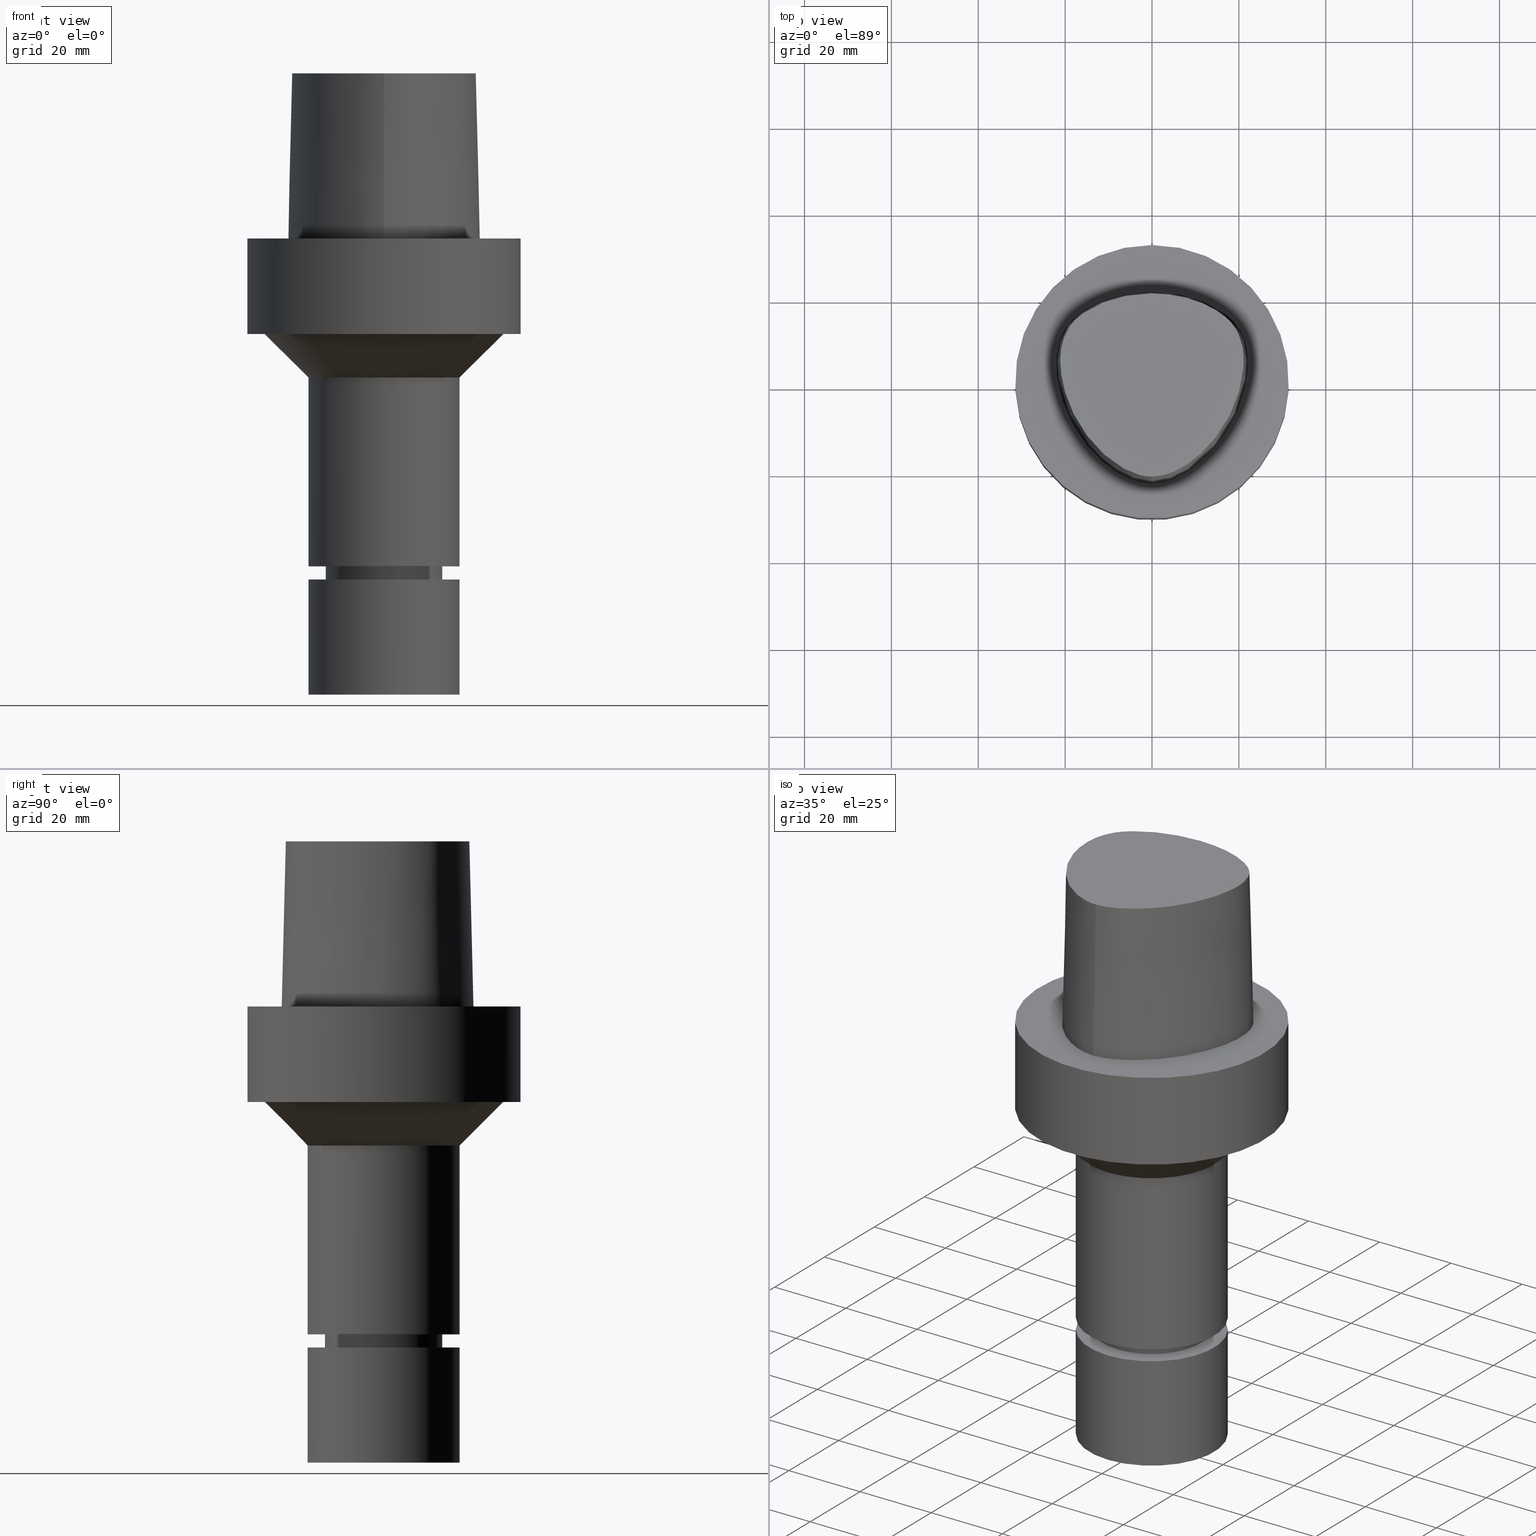
[diagram: canonical four-view strip — front | top / right | iso, engineering-drawing reading convention]
A machine part, canonical four-view strip (front | top / right | iso — engineering-drawing reading convention). The complete STEP part file that produces these views, byte-faithful:
ISO-10303-21;
HEADER;
FILE_DESCRIPTION((''),'1');
FILE_NAME('V:/90_\X2\53D65F9730C730FC30BF\X0\/00_\X2\6DE18DEF30C730FC30BF\X0\/ALL/CAPTO-BKUS\X2\52A05DE556F3\X0\_201801/C6-MEGAER/C6-MEGAER20-105NL.stp','2018-02-01T08:05:04',(''),(''),'Spatial Interop R21 SP3','Kubotek KeyCreator 2011 V10.0.2 (22737)',' ');
FILE_SCHEMA(('automotive_design'));
ENDSEC;
DATA;
#1=MECHANICAL_DESIGN_GEOMETRIC_PRESENTATION_REPRESENTATION(' ',(#14,#15,#16,#17,#18,#19,#20,#21,#22,#23,#24,#25,#26,#27,#28,#29,#30,#31,#32,#33,#34,#35,#36,#37,#38,#39,#40,#41,#42,#43,#44,#45,#46,#47,#48,#49,#50,#51,#52,#53),#10);
#2=PRODUCT_DEFINITION_CONTEXT('',#54,'design');
#3=APPLICATION_PROTOCOL_DEFINITION('INTERNATIONAL STANDARD','automotive_design',1994,#54);
#4=PRODUCT_CATEGORY_RELATIONSHIP('NONE','NONE',#55,#56);
#5=SHAPE_DEFINITION_REPRESENTATION(#57,#58);
#6=PRODUCT_DEFINITION_CONTEXT('',#59,'design');
#7=APPLICATION_PROTOCOL_DEFINITION('INTERNATIONAL STANDARD','automotive_design',1994,#59);
#8=PRODUCT_CATEGORY_RELATIONSHIP('NONE','NONE',#60,#61);
#9=SHAPE_DEFINITION_REPRESENTATION(#62,#63);
#10= (GEOMETRIC_REPRESENTATION_CONTEXT(3)GLOBAL_UNCERTAINTY_ASSIGNED_CONTEXT((#66))GLOBAL_UNIT_ASSIGNED_CONTEXT((#68,#69,#70))REPRESENTATION_CONTEXT('NONE','WORKSPACE'));
#14=STYLED_ITEM('',(#72),#73);
#15=STYLED_ITEM('',(#74,#75),#76);
#16=STYLED_ITEM('',(#77,#78),#79);
#17=STYLED_ITEM('',(#80,#81),#82);
#18=STYLED_ITEM('',(#83,#84),#85);
#19=STYLED_ITEM('',(#86),#87);
#20=STYLED_ITEM('',(#88),#89);
#21=STYLED_ITEM('',(#90,#91),#92);
#22=STYLED_ITEM('',(#93),#94);
#23=STYLED_ITEM('',(#95,#96),#97);
#24=STYLED_ITEM('',(#98,#99),#100);
#25=STYLED_ITEM('',(#101,#102),#103);
#26=STYLED_ITEM('',(#104,#105),#106);
#27=STYLED_ITEM('',(#107),#108);
#28=STYLED_ITEM('',(#109),#110);
#29=STYLED_ITEM('',(#111,#112),#113);
#30=STYLED_ITEM('',(#114),#115);
#31=STYLED_ITEM('',(#116),#117);
#32=STYLED_ITEM('',(#118),#119);
#33=STYLED_ITEM('',(#120),#121);
#34=STYLED_ITEM('',(#122),#123);
#35=STYLED_ITEM('',(#124,#125),#126);
#36=STYLED_ITEM('',(#127,#128),#129);
#37=STYLED_ITEM('',(#130),#131);
#38=STYLED_ITEM('',(#132),#133);
#39=STYLED_ITEM('',(#134,#135),#136);
#40=STYLED_ITEM('',(#137),#138);
#41=STYLED_ITEM('',(#139),#140);
#42=STYLED_ITEM('',(#141),#142);
#43=STYLED_ITEM('',(#143,#144),#145);
#44=STYLED_ITEM('',(#146,#147),#148);
#45=STYLED_ITEM('',(#149),#150);
#46=STYLED_ITEM('',(#151,#152),#153);
#47=STYLED_ITEM('',(#154),#155);
#48=STYLED_ITEM('',(#156),#157);
#49=STYLED_ITEM('',(#158,#159),#160);
#50=STYLED_ITEM('',(#161,#162),#163);
#51=STYLED_ITEM('',(#164),#165);
#52=STYLED_ITEM('',(#166,#167),#168);
#53=STYLED_ITEM('',(#169,#170),#171);
#54=APPLICATION_CONTEXT(' ');
#55=PRODUCT_CATEGORY('part','NONE');
#56=PRODUCT_RELATED_PRODUCT_CATEGORY('detail',' ',(#172));
#57=PRODUCT_DEFINITION_SHAPE('NONE','NONE',#173);
#58=ADVANCED_BREP_SHAPE_REPRESENTATION('Unnamed[1]',(#103,#174),#10);
#59=APPLICATION_CONTEXT(' ');
#60=PRODUCT_CATEGORY('part','NONE');
#61=PRODUCT_RELATED_PRODUCT_CATEGORY('detail',' ',(#175));
#62=PRODUCT_DEFINITION_SHAPE('NONE','NONE',#176);
#63=ADVANCED_BREP_SHAPE_REPRESENTATION('Unnamed[1]',(#153,#177),#10);
#66=UNCERTAINTY_MEASURE_WITH_UNIT(LENGTH_MEASURE(1.0E-006),#68,'','');
#68= (CONVERSION_BASED_UNIT('MILLIMETRE',#180)LENGTH_UNIT()NAMED_UNIT(#183));
#69= (NAMED_UNIT(#185)PLANE_ANGLE_UNIT()SI_UNIT($,.RADIAN.));
#70= (NAMED_UNIT(#185)SOLID_ANGLE_UNIT()SI_UNIT($,.STERADIAN.));
#72=PRESENTATION_STYLE_ASSIGNMENT((#191));
#73=EDGE_CURVE('Unnamed[1]',#192,#193,#194,.T.);
#74=PRESENTATION_STYLE_ASSIGNMENT((#195));
#75=PRESENTATION_STYLE_ASSIGNMENT((#196));
#76=ADVANCED_FACE('Unnamed[1]',(#197),#198,.T.);
#77=PRESENTATION_STYLE_ASSIGNMENT((#199));
#78=PRESENTATION_STYLE_ASSIGNMENT((#200));
#79=ADVANCED_FACE('Unnamed[1]',(#201),#202,.T.);
#80=PRESENTATION_STYLE_ASSIGNMENT((#203));
#81=PRESENTATION_STYLE_ASSIGNMENT((#204));
#82=ADVANCED_FACE('Unnamed[1]',(#205,#206),#207,.T.);
#83=PRESENTATION_STYLE_ASSIGNMENT((#208));
#84=PRESENTATION_STYLE_ASSIGNMENT((#209));
#85=ADVANCED_FACE('Unnamed[1]',(#210,#211),#212,.T.);
#86=PRESENTATION_STYLE_ASSIGNMENT((#213));
#87=EDGE_CURVE('Unnamed[1]',#214,#214,#215,.T.);
#88=PRESENTATION_STYLE_ASSIGNMENT((#216));
#89=EDGE_CURVE('Unnamed[1]',#217,#217,#218,.T.);
#90=PRESENTATION_STYLE_ASSIGNMENT((#219));
#91=PRESENTATION_STYLE_ASSIGNMENT((#220));
#92=ADVANCED_FACE('Unnamed[1]',(#221),#222,.T.);
#93=PRESENTATION_STYLE_ASSIGNMENT((#223));
#94=EDGE_CURVE('Unnamed[1]',#224,#224,#225,.T.);
#95=PRESENTATION_STYLE_ASSIGNMENT((#226));
#96=PRESENTATION_STYLE_ASSIGNMENT((#227));
#97=ADVANCED_FACE('Unnamed[1]',(#228),#229,.T.);
#98=PRESENTATION_STYLE_ASSIGNMENT((#230));
#99=PRESENTATION_STYLE_ASSIGNMENT((#231));
#100=ADVANCED_FACE('Unnamed[1]',(#232,#233),#234,.T.);
#101=PRESENTATION_STYLE_ASSIGNMENT((#235));
#102=PRESENTATION_STYLE_ASSIGNMENT((#236));
#103=MANIFOLD_SOLID_BREP('Unnamed[1]',#237);
#104=PRESENTATION_STYLE_ASSIGNMENT((#238));
#105=PRESENTATION_STYLE_ASSIGNMENT((#239));
#106=ADVANCED_FACE('Unnamed[1]',(#240),#241,.T.);
#107=PRESENTATION_STYLE_ASSIGNMENT((#242));
#108=EDGE_CURVE('Unnamed[1]',#243,#243,#244,.T.);
#109=PRESENTATION_STYLE_ASSIGNMENT((#245));
#110=EDGE_CURVE('Unnamed[1]',#246,#246,#247,.T.);
#111=PRESENTATION_STYLE_ASSIGNMENT((#248));
#112=PRESENTATION_STYLE_ASSIGNMENT((#249));
#113=ADVANCED_FACE('Unnamed[1]',(#250,#251),#252,.T.);
#114=PRESENTATION_STYLE_ASSIGNMENT((#253));
#115=EDGE_CURVE('Unnamed[1]',#192,#254,#255,.T.);
#116=PRESENTATION_STYLE_ASSIGNMENT((#256));
#117=EDGE_CURVE('Unnamed[1]',#257,#257,#258,.T.);
#118=PRESENTATION_STYLE_ASSIGNMENT((#259));
#119=EDGE_CURVE('Unnamed[1]',#260,#260,#261,.T.);
#120=PRESENTATION_STYLE_ASSIGNMENT((#262));
#121=EDGE_CURVE('Unnamed[1]',#193,#263,#264,.T.);
#122=PRESENTATION_STYLE_ASSIGNMENT((#265));
#123=EDGE_CURVE('Unnamed[1]',#266,#266,#267,.T.);
#124=PRESENTATION_STYLE_ASSIGNMENT((#268));
#125=PRESENTATION_STYLE_ASSIGNMENT((#269));
#126=ADVANCED_FACE('Unnamed[1]',(#270,#271),#272,.T.);
#127=PRESENTATION_STYLE_ASSIGNMENT((#273));
#128=PRESENTATION_STYLE_ASSIGNMENT((#274));
#129=ADVANCED_FACE('Unnamed[1]',(#275,#276),#277,.T.);
#130=PRESENTATION_STYLE_ASSIGNMENT((#278));
#131=EDGE_CURVE('Unnamed[1]',#254,#279,#280,.T.);
#132=PRESENTATION_STYLE_ASSIGNMENT((#281));
#133=EDGE_CURVE('Unnamed[1]',#282,#282,#283,.T.);
#134=PRESENTATION_STYLE_ASSIGNMENT((#284));
#135=PRESENTATION_STYLE_ASSIGNMENT((#285));
#136=ADVANCED_FACE('Unnamed[1]',(#286,#287),#288,.T.);
#137=PRESENTATION_STYLE_ASSIGNMENT((#289));
#138=EDGE_CURVE('Unnamed[1]',#254,#192,#290,.T.);
#139=PRESENTATION_STYLE_ASSIGNMENT((#291));
#140=EDGE_CURVE('Unnamed[1]',#254,#263,#292,.T.);
#141=PRESENTATION_STYLE_ASSIGNMENT((#293));
#142=EDGE_CURVE('Unnamed[1]',#294,#294,#295,.T.);
#143=PRESENTATION_STYLE_ASSIGNMENT((#296));
#144=PRESENTATION_STYLE_ASSIGNMENT((#297));
#145=ADVANCED_FACE('Unnamed[1]',(#298,#299),#300,.T.);
#146=PRESENTATION_STYLE_ASSIGNMENT((#301));
#147=PRESENTATION_STYLE_ASSIGNMENT((#302));
#148=ADVANCED_FACE('Unnamed[1]',(#303,#304),#305,.T.);
#149=PRESENTATION_STYLE_ASSIGNMENT((#306));
#150=EDGE_CURVE('Unnamed[1]',#263,#279,#307,.T.);
#151=PRESENTATION_STYLE_ASSIGNMENT((#308));
#152=PRESENTATION_STYLE_ASSIGNMENT((#309));
#153=MANIFOLD_SOLID_BREP('Unnamed[1]',#310);
#154=PRESENTATION_STYLE_ASSIGNMENT((#311));
#155=EDGE_CURVE('Unnamed[1]',#312,#312,#313,.T.);
#156=PRESENTATION_STYLE_ASSIGNMENT((#314));
#157=EDGE_CURVE('Unnamed[1]',#315,#315,#316,.T.);
#158=PRESENTATION_STYLE_ASSIGNMENT((#317));
#159=PRESENTATION_STYLE_ASSIGNMENT((#318));
#160=ADVANCED_FACE('Unnamed[1]',(#319,#320),#321,.T.);
#161=PRESENTATION_STYLE_ASSIGNMENT((#322));
#162=PRESENTATION_STYLE_ASSIGNMENT((#323));
#163=ADVANCED_FACE('Unnamed[1]',(#324),#325,.T.);
#164=PRESENTATION_STYLE_ASSIGNMENT((#326));
#165=EDGE_CURVE('Unnamed[1]',#279,#193,#327,.T.);
#166=PRESENTATION_STYLE_ASSIGNMENT((#328));
#167=PRESENTATION_STYLE_ASSIGNMENT((#329));
#168=ADVANCED_FACE('Unnamed[1]',(#330,#331),#332,.T.);
#169=PRESENTATION_STYLE_ASSIGNMENT((#333));
#170=PRESENTATION_STYLE_ASSIGNMENT((#334));
#171=ADVANCED_FACE('Unnamed[1]',(#335),#336,.T.);
#172=PRODUCT('Unnamed[1]','Unnamed[1]','PART-Unnamed[1]-DESC',(#337));
#173=PRODUCT_DEFINITION('NONE','NONE',#338,#2);
#174=AXIS2_PLACEMENT_3D('',#339,#340,#341);
#175=PRODUCT('Unnamed[1]','Unnamed[1]','PART-Unnamed[1]-DESC',(#342));
#176=PRODUCT_DEFINITION('NONE','NONE',#343,#6);
#177=AXIS2_PLACEMENT_3D('',#344,#345,#346);
#180=LENGTH_MEASURE_WITH_UNIT(LENGTH_MEASURE(1.0),#347);
#183=DIMENSIONAL_EXPONENTS(1.0,0.0,0.0,0.0,0.0,0.0,0.0);
#185=DIMENSIONAL_EXPONENTS(0.0,0.0,0.0,0.0,0.0,0.0,0.0);
#191=CURVE_STYLE('',#348,POSITIVE_LENGTH_MEASURE(1000.0),#349);
#192=VERTEX_POINT('',#350);
#193=VERTEX_POINT('',#351);
#194=LINE('',#352,#353);
#195=SURFACE_STYLE_USAGE(.BOTH.,#354);
#196=CURVE_STYLE('',#355,POSITIVE_LENGTH_MEASURE(1000.0),#356);
#197=FACE_OUTER_BOUND('',#357,.T.);
#198=CONICAL_SURFACE('',#358,1.0,0.0249931148600041);
#199=SURFACE_STYLE_USAGE(.BOTH.,#359);
#200=CURVE_STYLE('',#360,POSITIVE_LENGTH_MEASURE(1000.0),#361);
#201=FACE_OUTER_BOUND('',#362,.T.);
#202=PLANE('',#363);
#203=SURFACE_STYLE_USAGE(.BOTH.,#364);
#204=CURVE_STYLE('',#365,POSITIVE_LENGTH_MEASURE(1000.0),#366);
#205=FACE_BOUND('',#367,.T.);
#206=FACE_BOUND('',#368,.T.);
#207=CONICAL_SURFACE('',#369,11.9499999999988,0.523598775598648);
#208=SURFACE_STYLE_USAGE(.BOTH.,#370);
#209=CURVE_STYLE('',#371,POSITIVE_LENGTH_MEASURE(1000.0),#372);
#210=FACE_BOUND('',#373,.T.);
#211=FACE_BOUND('',#374,.T.);
#212=CYLINDRICAL_SURFACE('',#375,31.5);
#213=CURVE_STYLE('',#376,POSITIVE_LENGTH_MEASURE(1000.0),#377);
#214=VERTEX_POINT('',#378);
#215=CIRCLE('',#379,13.4999999999908);
#216=CURVE_STYLE('',#380,POSITIVE_LENGTH_MEASURE(1000.0),#381);
#217=VERTEX_POINT('',#382);
#218=CIRCLE('',#383,12.4999999999999);
#219=SURFACE_STYLE_USAGE(.BOTH.,#384);
#220=CURVE_STYLE('',#385,POSITIVE_LENGTH_MEASURE(1000.0),#386);
#221=FACE_OUTER_BOUND('',#387,.T.);
#222=B_SPLINE_SURFACE_WITH_KNOTS('',3,3,((#388,#389,#390,#391),(#392,#393,#394,#395),(#396,#397,#398,#399),(#400,#401,#402,#403),(#404,#405,#406,#407),(#408,#409,#410,#411),(#412,#413,#414,#415),(#416,#417,#418,#419),(#420,#421,#422,#423),(#424,#425,#426,#427),(#428,#429,#430,#431),(#432,#433,#434,#435),(#436,#437,#438,#439),(#440,#441,#442,#443),(#444,#445,#446,#447),(#448,#449,#450,#451),(#452,#453,#454,#455),(#456,#457,#458,#459)),.UNSPECIFIED.,.F.,.F.,.F.,(4,1,1,1,1,1,1,1,1,2,1,1,1,1,4),(4,4),(-6.6151339308743,-6.20168806019465,-5.78824218951501,-5.37479631883537,-4.96135044815572,-4.13445870679644,-3.30756696543715,-2.89412109475751,-2.48067522407786,-2.06722935339822,-1.65378348271857,-1.24033761203893,-0.826891741359287,-0.413445870679644,0.0),(-3.8,0.0),.UNSPECIFIED.);
#223=CURVE_STYLE('',#460,POSITIVE_LENGTH_MEASURE(1000.0),#461);
#224=VERTEX_POINT('',#462);
#225=CIRCLE('',#463,12.4999999999998);
#226=SURFACE_STYLE_USAGE(.BOTH.,#464);
#227=CURVE_STYLE('',#465,POSITIVE_LENGTH_MEASURE(1000.0),#466);
#228=FACE_OUTER_BOUND('',#467,.T.);
#229=PLANE('',#468);
#230=SURFACE_STYLE_USAGE(.BOTH.,#469);
#231=CURVE_STYLE('',#470,POSITIVE_LENGTH_MEASURE(1000.0),#471);
#232=FACE_BOUND('',#472,.T.);
#233=FACE_BOUND('',#473,.T.);
#234=CYLINDRICAL_SURFACE('',#474,17.5);
#235=SURFACE_STYLE_USAGE(.BOTH.,#475);
#236=CURVE_STYLE('',#476,POSITIVE_LENGTH_MEASURE(1000.0),#477);
#237=CLOSED_SHELL('',(#171,#92,#76,#106,#148,#85,#126,#168,#160,#113,#129,#136,#145,#82,#97));
#238=SURFACE_STYLE_USAGE(.BOTH.,#478);
#239=CURVE_STYLE('',#479,POSITIVE_LENGTH_MEASURE(1000.0),#480);
#240=FACE_OUTER_BOUND('',#481,.T.);
#241=PLANE('',#482);
#242=CURVE_STYLE('',#483,POSITIVE_LENGTH_MEASURE(1000.0),#484);
#243=VERTEX_POINT('',#485);
#244=CIRCLE('',#486,31.5);
#245=CURVE_STYLE('',#487,POSITIVE_LENGTH_MEASURE(1000.0),#488);
#246=VERTEX_POINT('',#489);
#247=CIRCLE('',#490,11.3999999999978);
#248=SURFACE_STYLE_USAGE(.BOTH.,#491);
#249=CURVE_STYLE('',#492,POSITIVE_LENGTH_MEASURE(1000.0),#493);
#250=FACE_BOUND('',#494,.T.);
#251=FACE_OUTER_BOUND('',#495,.T.);
#252=PLANE('',#496);
#253=CURVE_STYLE('',#497,POSITIVE_LENGTH_MEASURE(1000.0),#498);
#254=VERTEX_POINT('',#499);
#255=B_SPLINE_CURVE_WITH_KNOTS('',3,(#500,#501,#502,#503,#504,#505,#506,#507,#508,#509,#510,#511,#512,#513,#514,#515),.UNSPECIFIED.,.F.,.F.,(4,1,1,1,1,1,1,1,1,1,1,1,1,4),(6.61513393087476,6.99917207152274,7.48193246986995,7.96289324787093,8.45540287038584,9.10291653679981,9.67129810936083,10.1618749681153,10.6358867802489,11.1080734988593,11.6043706019633,12.09451993853,12.6985979284494,13.2302678617486),.UNSPECIFIED.);
#256=CURVE_STYLE('',#516,POSITIVE_LENGTH_MEASURE(1000.0),#517);
#257=VERTEX_POINT('',#518);
#258=CIRCLE('',#519,17.5);
#259=CURVE_STYLE('',#520,POSITIVE_LENGTH_MEASURE(1000.0),#521);
#260=VERTEX_POINT('',#522);
#261=CIRCLE('',#523,31.5);
#262=CURVE_STYLE('',#524,POSITIVE_LENGTH_MEASURE(1000.0),#525);
#263=VERTEX_POINT('',#526);
#264=B_SPLINE_CURVE_WITH_KNOTS('',3,(#527,#528,#529,#530,#531,#532,#533,#534,#535,#536,#537,#538,#539,#540,#541,#542,#543,#544),.UNSPECIFIED.,.F.,.F.,(4,1,1,1,1,1,1,1,1,2,1,1,1,1,4),(-6.6151339308743,-6.20168806019465,-5.78824218951501,-5.37479631883537,-4.96135044815572,-4.13445870679644,-3.30756696543715,-2.89412109475751,-2.48067522407786,-2.06722935339822,-1.65378348271857,-1.24033761203893,-0.826891741359287,-0.413445870679644,0.0),.UNSPECIFIED.);
#265=CURVE_STYLE('',#545,POSITIVE_LENGTH_MEASURE(1000.0),#546);
#266=VERTEX_POINT('',#547);
#267=CIRCLE('',#548,17.4999999999996);
#268=SURFACE_STYLE_USAGE(.BOTH.,#549);
#269=CURVE_STYLE('',#550,POSITIVE_LENGTH_MEASURE(1000.0),#551);
#270=FACE_BOUND('',#552,.T.);
#271=FACE_OUTER_BOUND('',#553,.T.);
#272=PLANE('',#554);
#273=SURFACE_STYLE_USAGE(.BOTH.,#555);
#274=CURVE_STYLE('',#556,POSITIVE_LENGTH_MEASURE(1000.0),#557);
#275=FACE_BOUND('',#558,.T.);
#276=FACE_BOUND('',#559,.T.);
#277=CYLINDRICAL_SURFACE('',#560,13.4999999999956);
#278=CURVE_STYLE('',#561,POSITIVE_LENGTH_MEASURE(1000.0),#562);
#279=VERTEX_POINT('',#563);
#280=LINE('',#564,#565);
#281=CURVE_STYLE('',#566,POSITIVE_LENGTH_MEASURE(1000.0),#567);
#282=VERTEX_POINT('',#568);
#283=CIRCLE('',#569,13.5000000000005);
#284=SURFACE_STYLE_USAGE(.BOTH.,#570);
#285=CURVE_STYLE('',#571,POSITIVE_LENGTH_MEASURE(1000.0),#572);
#286=FACE_BOUND('',#573,.T.);
#287=FACE_BOUND('',#574,.T.);
#288=CONICAL_SURFACE('',#575,13.0000000000002,1.04719755119482);
#289=CURVE_STYLE('',#576,POSITIVE_LENGTH_MEASURE(1000.0),#577);
#290=B_SPLINE_CURVE_WITH_KNOTS('',3,(#578,#579,#580,#581,#582,#583,#584,#585,#586,#587,#588,#589,#590,#591,#592,#593),.UNSPECIFIED.,.F.,.F.,(4,1,1,1,1,1,1,1,1,1,1,1,1,4),(0.0,0.447924670568964,0.9388024242536,1.50591409090711,2.07314340012323,2.72424957442464,3.2253501842849,3.80982102049476,4.34867996267067,4.85900173381144,5.37972031856977,6.03459825488646,6.61113557741484,6.61513393087395),.UNSPECIFIED.);
#291=CURVE_STYLE('',#594,POSITIVE_LENGTH_MEASURE(1000.0),#595);
#292=LINE('',#596,#597);
#293=CURVE_STYLE('',#598,POSITIVE_LENGTH_MEASURE(1000.0),#599);
#294=VERTEX_POINT('',#600);
#295=CIRCLE('',#601,17.5);
#296=SURFACE_STYLE_USAGE(.BOTH.,#602);
#297=CURVE_STYLE('',#603,POSITIVE_LENGTH_MEASURE(1000.0),#604);
#298=FACE_BOUND('',#605,.T.);
#299=FACE_BOUND('',#606,.T.);
#300=CYLINDRICAL_SURFACE('',#607,12.4999999999999);
#301=SURFACE_STYLE_USAGE(.BOTH.,#608);
#302=CURVE_STYLE('',#609,POSITIVE_LENGTH_MEASURE(1000.0),#610);
#303=FACE_BOUND('',#611,.T.);
#304=FACE_OUTER_BOUND('',#612,.T.);
#305=PLANE('',#613);
#306=CURVE_STYLE('',#614,POSITIVE_LENGTH_MEASURE(1000.0),#615);
#307=CIRCLE('',#616,0.949936168436318);
#308=SURFACE_STYLE_USAGE(.BOTH.,#617);
#309=CURVE_STYLE('',#618,POSITIVE_LENGTH_MEASURE(1000.0),#619);
#310=CLOSED_SHELL('',(#163,#79,#100));
#311=CURVE_STYLE('',#620,POSITIVE_LENGTH_MEASURE(1000.0),#621);
#312=VERTEX_POINT('',#622);
#313=CIRCLE('',#623,27.4999999999995);
#314=CURVE_STYLE('',#624,POSITIVE_LENGTH_MEASURE(1000.0),#625);
#315=VERTEX_POINT('',#626);
#316=CIRCLE('',#627,17.4999999999999);
#317=SURFACE_STYLE_USAGE(.BOTH.,#628);
#318=CURVE_STYLE('',#629,POSITIVE_LENGTH_MEASURE(1000.0),#630);
#319=FACE_BOUND('',#631,.T.);
#320=FACE_BOUND('',#632,.T.);
#321=CYLINDRICAL_SURFACE('',#633,17.4999999999998);
#322=SURFACE_STYLE_USAGE(.BOTH.,#634);
#323=CURVE_STYLE('',#635,POSITIVE_LENGTH_MEASURE(1000.0),#636);
#324=FACE_OUTER_BOUND('',#637,.T.);
#325=PLANE('',#638);
#326=CURVE_STYLE('',#639,POSITIVE_LENGTH_MEASURE(1000.0),#640);
#327=B_SPLINE_CURVE_WITH_KNOTS('',3,(#641,#642,#643,#644,#645,#646,#647,#648,#649,#650,#651,#652,#653,#654,#655,#656,#657),.UNSPECIFIED.,.F.,.F.,(4,1,1,1,1,1,1,1,1,1,1,1,1,1,4),(-13.2302678617486,-12.816821991069,-12.4033761203893,-11.9899302497097,-11.57648437903,-11.1630385083504,-10.9563155730106,-10.7495926376707,-10.3361467669911,-9.92270089631145,-9.09580915495216,-8.26891741359287,-7.44202567223358,-7.02857980155394,-6.6151339308743),.UNSPECIFIED.);
#328=SURFACE_STYLE_USAGE(.BOTH.,#658);
#329=CURVE_STYLE('',#659,POSITIVE_LENGTH_MEASURE(1000.0),#660);
#330=FACE_BOUND('',#661,.T.);
#331=FACE_BOUND('',#662,.T.);
#332=CONICAL_SURFACE('',#663,22.4999999999997,0.785398163397432);
#333=SURFACE_STYLE_USAGE(.BOTH.,#664);
#334=CURVE_STYLE('',#665,POSITIVE_LENGTH_MEASURE(1000.0),#666);
#335=FACE_OUTER_BOUND('',#667,.T.);
#336=B_SPLINE_SURFACE_WITH_KNOTS('',3,3,((#668,#669,#670,#671),(#672,#673,#674,#675),(#676,#677,#678,#679),(#680,#681,#682,#683),(#684,#685,#686,#687),(#688,#689,#690,#691),(#692,#693,#694,#695),(#696,#697,#698,#699),(#700,#701,#702,#703),(#704,#705,#706,#707),(#708,#709,#710,#711),(#712,#713,#714,#715),(#716,#717,#718,#719),(#720,#721,#722,#723),(#724,#725,#726,#727),(#728,#729,#730,#731),(#732,#733,#734,#735)),.UNSPECIFIED.,.F.,.F.,.F.,(4,1,1,1,1,1,1,1,1,1,1,1,1,1,4),(4,4),(-13.2302678617486,-12.816821991069,-12.4033761203893,-11.9899302497097,-11.57648437903,-11.1630385083504,-10.9563155730106,-10.7495926376707,-10.3361467669911,-9.92270089631145,-9.09580915495216,-8.26891741359287,-7.44202567223358,-7.02857980155394,-6.6151339308743),(-3.8,0.0),.UNSPECIFIED.);
#337=PRODUCT_CONTEXT('',#54,'mechanical');
#338=PRODUCT_DEFINITION_FORMATION_WITH_SPECIFIED_SOURCE(' ','NONE',#172,.NOT_KNOWN.);
#339=CARTESIAN_POINT('',(0.0,0.0,0.0));
#340=DIRECTION('',(0.0,0.0,1.0));
#341=DIRECTION('',(1.0,0.0,0.0));
#342=PRODUCT_CONTEXT('',#59,'mechanical');
#343=PRODUCT_DEFINITION_FORMATION_WITH_SPECIFIED_SOURCE(' ','NONE',#175,.NOT_KNOWN.);
#344=CARTESIAN_POINT('',(0.0,0.0,0.0));
#345=DIRECTION('',(0.0,0.0,1.0));
#346=DIRECTION('',(1.0,0.0,0.0));
#347= (NAMED_UNIT(#183)LENGTH_UNIT()SI_UNIT(.MILLI.,.METRE.));
#348=DRAUGHTING_PRE_DEFINED_CURVE_FONT('continuous');
#349=COLOUR_RGB('',0.0,1.0,0.0);
#350=CARTESIAN_POINT('',(0.038736923393866,-22.5191997536361,38.0));
#351=CARTESIAN_POINT('',(0.04359356758149,-23.4691235068931,7.78075697532443E-032));
#352=CARTESIAN_POINT('',(0.038736923393866,-22.5191997536361,38.0));
#353=VECTOR('',#737,38.0118715498723);
#354=SURFACE_SIDE_STYLE('',(#738));
#355=DRAUGHTING_PRE_DEFINED_CURVE_FONT('continuous');
#356=COLOUR_RGB('',0.0,1.0,0.0);
#357=EDGE_LOOP('',(#739,#740,#741));
#358=AXIS2_PLACEMENT_3D('',#742,#743,#744);
#359=SURFACE_SIDE_STYLE('',(#745));
#360=DRAUGHTING_PRE_DEFINED_CURVE_FONT('continuous');
#361=COLOUR_RGB('',0.0,1.0,0.0);
#362=EDGE_LOOP('',(#746));
#363=AXIS2_PLACEMENT_3D('',#747,#748,#749);
#364=SURFACE_SIDE_STYLE('',(#750));
#365=DRAUGHTING_PRE_DEFINED_CURVE_FONT('continuous');
#366=COLOUR_RGB('',0.0,1.0,0.0);
#367=EDGE_LOOP('',(#751));
#368=EDGE_LOOP('',(#752));
#369=AXIS2_PLACEMENT_3D('',#753,#754,#755);
#370=SURFACE_SIDE_STYLE('',(#756));
#371=DRAUGHTING_PRE_DEFINED_CURVE_FONT('continuous');
#372=COLOUR_RGB('',0.0,1.0,0.0);
#373=EDGE_LOOP('',(#757));
#374=EDGE_LOOP('',(#758));
#375=AXIS2_PLACEMENT_3D('',#759,#760,#761);
#376=DRAUGHTING_PRE_DEFINED_CURVE_FONT('continuous');
#377=COLOUR_RGB('',0.0,1.0,0.0);
#378=CARTESIAN_POINT('',(4.62304166678125E-015,13.4999999999908,-75.4999999999998));
#379=AXIS2_PLACEMENT_3D('',#762,#763,#764);
#380=DRAUGHTING_PRE_DEFINED_CURVE_FONT('continuous');
#381=COLOUR_RGB('',0.0,1.0,0.0);
#382=CARTESIAN_POINT('',(5.01490875023965E-015,12.4999999999999,-81.8996751345975));
#383=AXIS2_PLACEMENT_3D('',#765,#766,#767);
#384=SURFACE_SIDE_STYLE('',(#768));
#385=DRAUGHTING_PRE_DEFINED_CURVE_FONT('continuous');
#386=COLOUR_RGB('',0.0,1.0,0.0);
#387=EDGE_LOOP('',(#769,#770,#771,#772));
#388=CARTESIAN_POINT('',(0.038736923393866,-22.5191997536361,38.0));
#389=CARTESIAN_POINT('',(0.04035580478973,-22.8358410047159,25.3333333333066));
#390=CARTESIAN_POINT('',(0.041974686185626,-23.1524822558133,12.6666666666934));
#391=CARTESIAN_POINT('',(0.04359356758149,-23.4691235068931,7.78075697532443E-032));
#392=CARTESIAN_POINT('',(-1.33786123484754,-22.5261650259856,38.0));
#393=CARTESIAN_POINT('',(-1.38240731367927,-22.8430399310626,25.3333333333066));
#394=CARTESIAN_POINT('',(-1.42695339249092,-23.1599147815484,12.6666666666934));
#395=CARTESIAN_POINT('',(-1.4714994713963,-23.4767895315797,2.46519032881566E-032));
#396=CARTESIAN_POINT('',(-4.08909358431842,-21.9268839879558,38.0));
#397=CARTESIAN_POINT('',(-4.20580731135515,-22.2249725500078,25.3333333333066));
#398=CARTESIAN_POINT('',(-4.32252104640446,-22.5230611651922,12.6666666666934));
#399=CARTESIAN_POINT('',(-4.43923476371401,-22.821149804767,-4.93038065763132E-032));
#400=CARTESIAN_POINT('',(-7.8333083619947,-19.9973514861616,38.0));
#401=CARTESIAN_POINT('',(-8.00568301809614,-20.2649260859405,25.3333333333066));
#402=CARTESIAN_POINT('',(-8.1780576640789,-20.532500564315,12.6666666666934));
#403=CARTESIAN_POINT('',(-8.35043230079961,-20.8000751253325,-9.86076131526265E-032));
#404=CARTESIAN_POINT('',(-11.1035071147626,-17.450554957873,38.0));
#405=CARTESIAN_POINT('',(-11.3173048160562,-17.6855739222454,25.3333333333066));
#406=CARTESIAN_POINT('',(-11.5311025116181,-17.9205928617968,12.6666666666934));
#407=CARTESIAN_POINT('',(-11.744900222602,-18.1556117874078,-1.97215226305253E-031));
#408=CARTESIAN_POINT('',(-14.9379535189057,-13.461132049697,38.0));
#409=CARTESIAN_POINT('',(-15.191622410671,-13.6542981711372,25.3333333333066));
#410=CARTESIAN_POINT('',(-15.4452913389853,-13.8474645327131,12.6666666666934));
#411=CARTESIAN_POINT('',(-15.6989602501314,-14.0406306929147,-1.97215226305253E-031));
#412=CARTESIAN_POINT('',(-18.6681263017223,-7.59391757463204,38.0));
#413=CARTESIAN_POINT('',(-18.9571800800711,-7.73136168081928,25.3333333333066));
#414=CARTESIAN_POINT('',(-19.2462337287194,-7.86880572399774,12.6666666666934));
#415=CARTESIAN_POINT('',(-19.5352875070682,-8.00624990770787,1.97215226305253E-031));
#416=CARTESIAN_POINT('',(-20.7857899858339,-0.952862819790525,38.0));
#417=CARTESIAN_POINT('',(-21.0973808305434,-1.02218087467418,25.3333333333066));
#418=CARTESIAN_POINT('',(-21.408971677436,-1.09149899580772,12.6666666666934));
#419=CARTESIAN_POINT('',(-21.7205626190491,-1.16081708945282,0.0));
#420=CARTESIAN_POINT('',(-21.2911760556836,4.5469215763113,38.0));
#421=CARTESIAN_POINT('',(-21.610337904926,4.54783292082248,25.3333333333066));
#422=CARTESIAN_POINT('',(-21.9294998290918,4.54874426225691,12.6666666666934));
#423=CARTESIAN_POINT('',(-22.2486616783342,4.54965558738736,0.0));
#424=CARTESIAN_POINT('',(-20.7345309521958,8.74909381391006,38.0));
#425=CARTESIAN_POINT('',(-21.0445680426217,8.83349432450556,25.3333333333066));
#426=CARTESIAN_POINT('',(-21.3546050933631,8.91789488065068,12.6666666666934));
#427=CARTESIAN_POINT('',(-21.6646421256468,9.00229539124618,0.0));
#428=CARTESIAN_POINT('',(-19.5531512296439,11.3174844040833,38.0));
#429=CARTESIAN_POINT('',(-19.8336219699984,11.4710077674213,25.3333333333066));
#430=CARTESIAN_POINT('',(-20.1140927680763,11.6245311337623,12.6666666666934));
#431=CARTESIAN_POINT('',(-20.3945635471922,11.7780544971003,0.0));
#432=CARTESIAN_POINT('',(-17.9100913688793,13.524027510437,38.0));
#433=CARTESIAN_POINT('',(-18.1375785458768,13.7487051053655,25.3333333333066));
#434=CARTESIAN_POINT('',(-18.365065665211,13.9733826973296,12.6666666666934));
#435=CARTESIAN_POINT('',(-18.5925528034471,14.1980602922581,0.0));
#436=CARTESIAN_POINT('',(-15.7996349656398,15.3762170634413,38.0));
#437=CARTESIAN_POINT('',(-15.9739761051783,15.6434029846179,25.3333333333066));
#438=CARTESIAN_POINT('',(-16.1483172726872,15.9105889315134,12.6666666666934));
#439=CARTESIAN_POINT('',(-16.3226584122258,16.1777748720707,0.0));
#440=CARTESIAN_POINT('',(-12.1175640002064,17.3825162484012,38.0));
#441=CARTESIAN_POINT('',(-12.2475895903055,17.6724842099619,25.3333333333066));
#442=CARTESIAN_POINT('',(-12.3776152070492,17.9624521925696,12.6666666666934));
#443=CARTESIAN_POINT('',(-12.5076407874579,18.2524201541303,9.86076131526265E-032));
#444=CARTESIAN_POINT('',(-8.21761151654222,18.7588585989994,38.0));
#445=CARTESIAN_POINT('',(-8.30099497910627,19.0656105427881,25.3333333333066));
#446=CARTESIAN_POINT('',(-8.38437843913309,19.3723624535439,12.6666666666934));
#447=CARTESIAN_POINT('',(-8.46776192107786,19.679114377952,9.86076131526265E-032));
#448=CARTESIAN_POINT('',(-4.13466093881225,19.5396850837055,38.0));
#449=CARTESIAN_POINT('',(-4.16658562115465,19.8557172636973,25.3333333333066));
#450=CARTESIAN_POINT('',(-4.19851029939059,20.1717494367229,12.6666666666934));
#451=CARTESIAN_POINT('',(-4.23043497193604,20.487781597334,1.97215226305253E-031));
#452=CARTESIAN_POINT('',(-1.37917220403684,19.6638560588908,38.0));
#453=CARTESIAN_POINT('',(-1.39382511685176,19.98016223565,25.3333333333066));
#454=CARTESIAN_POINT('',(-1.40847802945569,20.296468399885,12.6666666666934));
#455=CARTESIAN_POINT('',(-1.42313094248379,20.6127745766442,1.10933564796705E-031));
#456=CARTESIAN_POINT('',(-0.001218547003662,19.7276821925089,38.0));
#457=CARTESIAN_POINT('',(-0.015869696232855,20.043988446791,25.3333333333066));
#458=CARTESIAN_POINT('',(-0.030520845462092,20.3602947010464,12.6666666666934));
#459=CARTESIAN_POINT('',(-0.045171994691285,20.6766009553285,1.6755590516169E-031));
#460=DRAUGHTING_PRE_DEFINED_CURVE_FONT('continuous');
#461=COLOUR_RGB('',0.0,1.0,0.0);
#462=CARTESIAN_POINT('',(5.71265548768156E-015,12.4999999999998,-93.2947441116725));
#463=AXIS2_PLACEMENT_3D('',#773,#774,#775);
#464=SURFACE_SIDE_STYLE('',(#776));
#465=DRAUGHTING_PRE_DEFINED_CURVE_FONT('continuous');
#466=COLOUR_RGB('',0.0,1.0,0.0);
#467=EDGE_LOOP('',(#777));
#468=AXIS2_PLACEMENT_3D('',#778,#779,#780);
#469=SURFACE_SIDE_STYLE('',(#781));
#470=DRAUGHTING_PRE_DEFINED_CURVE_FONT('continuous');
#471=COLOUR_RGB('',0.0,1.0,0.0);
#472=EDGE_LOOP('',(#782));
#473=EDGE_LOOP('',(#783));
#474=AXIS2_PLACEMENT_3D('',#784,#785,#786);
#475=SURFACE_SIDE_STYLE('',(#787));
#476=DRAUGHTING_PRE_DEFINED_CURVE_FONT('continuous');
#477=COLOUR_RGB('',0.0,1.0,0.0);
#478=SURFACE_SIDE_STYLE('',(#788));
#479=DRAUGHTING_PRE_DEFINED_CURVE_FONT('continuous');
#480=COLOUR_RGB('',0.0,1.0,0.0);
#481=EDGE_LOOP('',(#789,#790));
#482=AXIS2_PLACEMENT_3D('',#791,#792,#793);
#483=DRAUGHTING_PRE_DEFINED_CURVE_FONT('continuous');
#484=COLOUR_RGB('',0.0,1.0,0.0);
#485=CARTESIAN_POINT('',(-3.88267476788467E-031,31.5,3.85763741731416E-015));
#486=AXIS2_PLACEMENT_3D('',#794,#795,#796);
#487=DRAUGHTING_PRE_DEFINED_CURVE_FONT('continuous');
#488=COLOUR_RGB('',0.0,1.0,0.0);
#489=CARTESIAN_POINT('',(5.82931876394142E-015,11.3999999999978,-95.2000000000003));
#490=AXIS2_PLACEMENT_3D('',#797,#798,#799);
#491=SURFACE_SIDE_STYLE('',(#800));
#492=DRAUGHTING_PRE_DEFINED_CURVE_FONT('continuous');
#493=COLOUR_RGB('',0.0,1.0,0.0);
#494=EDGE_LOOP('',(#801));
#495=EDGE_LOOP('',(#802));
#496=AXIS2_PLACEMENT_3D('',#803,#804,#805);
#497=DRAUGHTING_PRE_DEFINED_CURVE_FONT('continuous');
#498=COLOUR_RGB('',0.0,1.0,0.0);
#499=CARTESIAN_POINT('',(-0.001218547003662,19.7276821925089,38.0));
#500=CARTESIAN_POINT('',(0.038736923394311,-22.519199753636,38.0));
#501=CARTESIAN_POINT('',(1.31742058183662,-22.512662269405,38.0));
#502=CARTESIAN_POINT('',(4.2093773447498,-21.9116226439989,38.0));
#503=CARTESIAN_POINT('',(8.20895504542113,-19.7798683845067,38.0));
#504=CARTESIAN_POINT('',(11.9784633234593,-16.681663904162,38.0));
#505=CARTESIAN_POINT('',(15.5308821579362,-12.5807487594113,38.0));
#506=CARTESIAN_POINT('',(18.4566248438667,-7.64932246015528,38.0));
#507=CARTESIAN_POINT('',(20.4036090752029,-2.27012499825289,38.0));
#508=CARTESIAN_POINT('',(21.2357187429189,2.79891401173156,38.0));
#509=CARTESIAN_POINT('',(21.0811206267748,7.62543090736657,38.0));
#510=CARTESIAN_POINT('',(19.3383577336563,12.2772250726194,38.0));
#511=CARTESIAN_POINT('',(15.5796322014404,15.5799672120682,38.0));
#512=CARTESIAN_POINT('',(10.8392956074438,17.9834601687347,38.0));
#513=CARTESIAN_POINT('',(5.56068045850571,19.4586143858472,38.0));
#514=CARTESIAN_POINT('',(1.77223893711014,19.6418877095654,38.0));
#515=CARTESIAN_POINT('',(-0.001218367817519,19.7276822012873,38.0));
#516=DRAUGHTING_PRE_DEFINED_CURVE_FONT('continuous');
#517=COLOUR_RGB('',0.0,1.0,0.0);
#518=CARTESIAN_POINT('',(4.80673962098472E-015,17.5,-78.5000152587891));
#519=AXIS2_PLACEMENT_3D('',#806,#807,#808);
#520=DRAUGHTING_PRE_DEFINED_CURVE_FONT('continuous');
#521=COLOUR_RGB('',0.0,1.0,0.0);
#522=CARTESIAN_POINT('',(1.34711147906212E-015,31.5,-22.0000000000006));
#523=AXIS2_PLACEMENT_3D('',#809,#810,#811);
#524=DRAUGHTING_PRE_DEFINED_CURVE_FONT('continuous');
#525=COLOUR_RGB('',0.0,1.0,0.0);
#526=CARTESIAN_POINT('',(-0.045171994691285,20.6766009553285,1.6755590516169E-031));
#527=CARTESIAN_POINT('',(0.04359356758149,-23.4691235068931,7.78075697532443E-032));
#528=CARTESIAN_POINT('',(-1.4714994713963,-23.4767895315797,2.46519032881566E-032));
#529=CARTESIAN_POINT('',(-4.43923476371401,-22.821149804767,-4.93038065763132E-032));
#530=CARTESIAN_POINT('',(-8.35043230079961,-20.8000751253325,-9.86076131526265E-032));
#531=CARTESIAN_POINT('',(-11.744900222602,-18.1556117874078,-1.97215226305253E-031));
#532=CARTESIAN_POINT('',(-15.6989602501314,-14.0406306929147,-1.97215226305253E-031));
#533=CARTESIAN_POINT('',(-19.5352875070682,-8.00624990770787,1.97215226305253E-031));
#534=CARTESIAN_POINT('',(-21.7205626190491,-1.16081708945282,0.0));
#535=CARTESIAN_POINT('',(-22.2486616783342,4.54965558738736,0.0));
#536=CARTESIAN_POINT('',(-21.6646421256468,9.00229539124618,0.0));
#537=CARTESIAN_POINT('',(-20.3945635471922,11.7780544971003,0.0));
#538=CARTESIAN_POINT('',(-18.5925528034471,14.1980602922581,0.0));
#539=CARTESIAN_POINT('',(-16.3226584122258,16.1777748720707,0.0));
#540=CARTESIAN_POINT('',(-12.5076407874579,18.2524201541303,9.86076131526265E-032));
#541=CARTESIAN_POINT('',(-8.46776192107786,19.679114377952,9.86076131526265E-032));
#542=CARTESIAN_POINT('',(-4.23043497193604,20.487781597334,1.97215226305253E-031));
#543=CARTESIAN_POINT('',(-1.42313094248379,20.6127745766442,1.10933564796705E-031));
#544=CARTESIAN_POINT('',(-0.045171994691285,20.6766009553285,1.6755590516169E-031));
#545=DRAUGHTING_PRE_DEFINED_CURVE_FONT('continuous');
#546=COLOUR_RGB('',0.0,1.0,0.0);
#547=CARTESIAN_POINT('',(4.62304166678125E-015,17.4999999999996,-75.4999999999998));
#548=AXIS2_PLACEMENT_3D('',#812,#813,#814);
#549=SURFACE_SIDE_STYLE('',(#815));
#550=DRAUGHTING_PRE_DEFINED_CURVE_FONT('continuous');
#551=COLOUR_RGB('',0.0,1.0,0.0);
#552=EDGE_LOOP('',(#816));
#553=EDGE_LOOP('',(#817));
#554=AXIS2_PLACEMENT_3D('',#818,#819,#820);
#555=SURFACE_SIDE_STYLE('',(#821));
#556=DRAUGHTING_PRE_DEFINED_CURVE_FONT('continuous');
#557=COLOUR_RGB('',0.0,1.0,0.0);
#558=EDGE_LOOP('',(#822));
#559=EDGE_LOOP('',(#823));
#560=AXIS2_PLACEMENT_3D('',#824,#825,#826);
#561=DRAUGHTING_PRE_DEFINED_CURVE_FONT('continuous');
#562=COLOUR_RGB('',0.0,1.0,0.0);
#563=CARTESIAN_POINT('',(0.044682985379347,20.6765087343109,1.61778115328528E-031));
#564=CARTESIAN_POINT('',(-0.001218547003662,19.7276821925089,38.0));
#565=VECTOR('',#827,38.0118715503078);
#566=DRAUGHTING_PRE_DEFINED_CURVE_FONT('continuous');
#567=COLOUR_RGB('',0.0,1.0,0.0);
#568=CARTESIAN_POINT('',(4.97955624228199E-015,13.5000000000005,-81.3223248654052));
#569=AXIS2_PLACEMENT_3D('',#828,#829,#830);
#570=SURFACE_SIDE_STYLE('',(#831));
#571=DRAUGHTING_PRE_DEFINED_CURVE_FONT('continuous');
#572=COLOUR_RGB('',0.0,1.0,0.0);
#573=EDGE_LOOP('',(#832));
#574=EDGE_LOOP('',(#833));
#575=AXIS2_PLACEMENT_3D('',#834,#835,#836);
#576=DRAUGHTING_PRE_DEFINED_CURVE_FONT('continuous');
#577=COLOUR_RGB('',0.0,1.0,0.0);
#578=CARTESIAN_POINT('',(-0.001218547003662,19.7276821925089,38.0));
#579=CARTESIAN_POINT('',(-1.49408492138443,19.6585333605309,38.0));
#580=CARTESIAN_POINT('',(-4.62297391420352,19.513604770166,38.0));
#581=CARTESIAN_POINT('',(-9.56160616752212,18.4291575730197,38.0));
#582=CARTESIAN_POINT('',(-14.5427684976927,16.2697452580488,38.0));
#583=CARTESIAN_POINT('',(-19.4315563551602,12.5302108980807,38.0));
#584=CARTESIAN_POINT('',(-21.306358833612,6.76352894547076,38.0));
#585=CARTESIAN_POINT('',(-21.0724946936277,0.957075236984038,38.0));
#586=CARTESIAN_POINT('',(-19.7876470880144,-4.34628503581652,38.0));
#587=CARTESIAN_POINT('',(-17.5396999600095,-9.33314444653089,38.0));
#588=CARTESIAN_POINT('',(-14.645447733857,-13.7185760345629,38.0));
#589=CARTESIAN_POINT('',(-10.7996726536643,-17.856257282137,38.0));
#590=CARTESIAN_POINT('',(-6.00479510196376,-21.2687382067675,38.0));
#591=CARTESIAN_POINT('',(-1.90747171908525,-22.5250621415864,38.0));
#592=CARTESIAN_POINT('',(0.025424107066464,-22.5192678176378,38.0));
#593=CARTESIAN_POINT('',(0.038736923394311,-22.519199753636,38.0));
#594=DRAUGHTING_PRE_DEFINED_CURVE_FONT('continuous');
#595=COLOUR_RGB('',0.0,1.0,0.0);
#596=CARTESIAN_POINT('',(-0.001218547003662,19.7276821925089,38.0));
#597=VECTOR('',#837,38.0118715498723);
#598=DRAUGHTING_PRE_DEFINED_CURVE_FONT('continuous');
#599=COLOUR_RGB('',0.0,1.0,0.0);
#600=CARTESIAN_POINT('',(6.4293956955236E-015,17.5,-105.0));
#601=AXIS2_PLACEMENT_3D('',#838,#839,#840);
#602=SURFACE_SIDE_STYLE('',(#841));
#603=DRAUGHTING_PRE_DEFINED_CURVE_FONT('continuous');
#604=COLOUR_RGB('',0.0,1.0,0.0);
#605=EDGE_LOOP('',(#842));
#606=EDGE_LOOP('',(#843));
#607=AXIS2_PLACEMENT_3D('',#844,#845,#846);
#608=SURFACE_SIDE_STYLE('',(#847));
#609=DRAUGHTING_PRE_DEFINED_CURVE_FONT('continuous');
#610=COLOUR_RGB('',0.0,1.0,0.0);
#611=EDGE_LOOP('',(#848,#849,#850));
#612=EDGE_LOOP('',(#851));
#613=AXIS2_PLACEMENT_3D('',#852,#853,#854);
#614=DRAUGHTING_PRE_DEFINED_CURVE_FONT('continuous');
#615=COLOUR_RGB('',0.0,1.0,0.0);
#616=AXIS2_PLACEMENT_3D('',#855,#856,#857);
#617=SURFACE_SIDE_STYLE('',(#858));
#618=DRAUGHTING_PRE_DEFINED_CURVE_FONT('continuous');
#619=COLOUR_RGB('',0.0,1.0,0.0);
#620=DRAUGHTING_PRE_DEFINED_CURVE_FONT('continuous');
#621=COLOUR_RGB('',0.0,1.0,0.0);
#622=CARTESIAN_POINT('',(1.34711147906211E-015,27.4999999999995,-22.0000000000003));
#623=AXIS2_PLACEMENT_3D('',#859,#860,#861);
#624=DRAUGHTING_PRE_DEFINED_CURVE_FONT('continuous');
#625=COLOUR_RGB('',0.0,1.0,0.0);
#626=CARTESIAN_POINT('',(1.95943487863578E-015,17.4999999999999,-32.0000000000002));
#627=AXIS2_PLACEMENT_3D('',#862,#863,#864);
#628=SURFACE_SIDE_STYLE('',(#865));
#629=DRAUGHTING_PRE_DEFINED_CURVE_FONT('continuous');
#630=COLOUR_RGB('',0.0,1.0,0.0);
#631=EDGE_LOOP('',(#866));
#632=EDGE_LOOP('',(#867));
#633=AXIS2_PLACEMENT_3D('',#868,#869,#870);
#634=SURFACE_SIDE_STYLE('',(#871));
#635=DRAUGHTING_PRE_DEFINED_CURVE_FONT('continuous');
#636=COLOUR_RGB('',0.0,1.0,0.0);
#637=EDGE_LOOP('',(#872));
#638=AXIS2_PLACEMENT_3D('',#873,#874,#875);
#639=DRAUGHTING_PRE_DEFINED_CURVE_FONT('continuous');
#640=COLOUR_RGB('',0.0,1.0,0.0);
#641=CARTESIAN_POINT('',(0.044682985379347,20.6765087343109,1.61778115328528E-031));
#642=CARTESIAN_POINT('',(1.42379272427753,20.6097915814392,8.62816615085482E-032));
#643=CARTESIAN_POINT('',(4.2230955003445,20.4837538303966,1.4791141972894E-031));
#644=CARTESIAN_POINT('',(8.47220762821777,19.6890432607088,9.86076131526265E-032));
#645=CARTESIAN_POINT('',(12.5141247708253,18.2434968480404,0.0));
#646=CARTESIAN_POINT('',(16.3038624872874,16.1734192182143,1.97215226305253E-031));
#647=CARTESIAN_POINT('',(19.1446913988473,13.7036723639434,-1.97215226305253E-031));
#648=CARTESIAN_POINT('',(20.7319894342149,11.1014620996188,0.0));
#649=CARTESIAN_POINT('',(21.7831756505763,8.28099229708081,-1.97215226305253E-031));
#650=CARTESIAN_POINT('',(22.2258240701438,4.60865440596506,0.0));
#651=CARTESIAN_POINT('',(21.7436130080666,-1.11326526354485,0.0));
#652=CARTESIAN_POINT('',(19.5519487660502,-7.95432366164584,0.0));
#653=CARTESIAN_POINT('',(14.9574167123838,-15.2089785567293,0.0));
#654=CARTESIAN_POINT('',(9.66840283021945,-20.0827414369705,-9.86076131526265E-032));
#655=CARTESIAN_POINT('',(4.51628650521788,-22.7946374572188,-9.86076131526265E-032));
#656=CARTESIAN_POINT('',(1.55867251738073,-23.4612972770043,-1.23259516440783E-032));
#657=CARTESIAN_POINT('',(0.04359356758149,-23.4691235068931,7.78075697532443E-032));
#658=SURFACE_SIDE_STYLE('',(#876));
#659=DRAUGHTING_PRE_DEFINED_CURVE_FONT('continuous');
#660=COLOUR_RGB('',0.0,1.0,0.0);
#661=EDGE_LOOP('',(#877));
#662=EDGE_LOOP('',(#878));
#663=AXIS2_PLACEMENT_3D('',#879,#880,#881);
#664=SURFACE_SIDE_STYLE('',(#882));
#665=DRAUGHTING_PRE_DEFINED_CURVE_FONT('continuous');
#666=COLOUR_RGB('',0.0,1.0,0.0);
#667=EDGE_LOOP('',(#883,#884,#885,#886));
#668=CARTESIAN_POINT('',(-0.001218367817519,19.7276822012873,38.0));
#669=CARTESIAN_POINT('',(0.014082083248157,20.0439577123075,25.3333333333066));
#670=CARTESIAN_POINT('',(0.029382534313671,20.3602332232908,12.6666666666934));
#671=CARTESIAN_POINT('',(0.044682985379347,20.6765087343109,1.61778115328528E-031));
#672=CARTESIAN_POINT('',(1.37788651195108,19.6609652834875,38.0));
#673=CARTESIAN_POINT('',(1.3931885827258,19.9772407169847,25.3333333333066));
#674=CARTESIAN_POINT('',(1.40849065356095,20.2935162254648,12.6666666666934));
#675=CARTESIAN_POINT('',(1.42379272427753,20.6097915814392,8.62816615085482E-032));
#676=CARTESIAN_POINT('',(4.135446440878,19.5347778787784,38.0));
#677=CARTESIAN_POINT('',(4.16466278851883,19.8511031866125,25.3333333333066));
#678=CARTESIAN_POINT('',(4.1938791526746,20.1674284644204,12.6666666666934));
#679=CARTESIAN_POINT('',(4.2230955003445,20.4837538303966,1.4791141972894E-031));
#680=CARTESIAN_POINT('',(8.213607363795,18.7706026638736,38.0));
#681=CARTESIAN_POINT('',(8.29980745008421,19.0767495109635,25.3333333333066));
#682=CARTESIAN_POINT('',(8.38600751285747,19.3828964329996,12.6666666666934));
#683=CARTESIAN_POINT('',(8.47220762821777,19.6890432607088,9.86076131526265E-032));
#684=CARTESIAN_POINT('',(12.1316338645671,17.3698624840857,38.0));
#685=CARTESIAN_POINT('',(12.2591308270381,17.6610739397708,25.3333333333066));
#686=CARTESIAN_POINT('',(12.3866278083543,17.9522853923553,12.6666666666934));
#687=CARTESIAN_POINT('',(12.5141247708253,18.2434968480404,0.0));
#688=CARTESIAN_POINT('',(15.7706546153679,15.3789501349612,38.0));
#689=CARTESIAN_POINT('',(15.9483905900895,15.6437731794811,25.3333333333066));
#690=CARTESIAN_POINT('',(16.1261265513272,15.9085961736944,12.6666666666934));
#691=CARTESIAN_POINT('',(16.3038624872874,16.1734192182143,1.97215226305253E-031));
#692=CARTESIAN_POINT('',(18.4265894256284,13.0570022172893,38.0));
#693=CARTESIAN_POINT('',(18.6659567517146,13.2725589420689,25.3333333333066));
#694=CARTESIAN_POINT('',(18.9053240921419,13.4881156488541,12.6666666666934));
#695=CARTESIAN_POINT('',(19.1446913988473,13.7036723639434,-1.97215226305253E-031));
#696=CARTESIAN_POINT('',(19.8679958653038,10.6923771981998,38.0));
#697=CARTESIAN_POINT('',(20.1559937048299,10.8287388264873,25.3333333333066));
#698=CARTESIAN_POINT('',(20.4439915656177,10.965100461641,12.6666666666934));
#699=CARTESIAN_POINT('',(20.7319894342149,11.1014620996188,0.0));
#700=CARTESIAN_POINT('',(20.8470867582337,8.07149548576131,38.0));
#701=CARTESIAN_POINT('',(21.1591164072431,8.14132775555392,25.3333333333066));
#702=CARTESIAN_POINT('',(21.4711459821861,8.21116003697855,12.6666666666934));
#703=CARTESIAN_POINT('',(21.7831756505763,8.28099229708081,-1.97215226305253E-031));
#704=CARTESIAN_POINT('',(21.2693244256982,4.61157245650171,38.0));
#705=CARTESIAN_POINT('',(21.5881576801997,4.6105997689982,25.3333333333066));
#706=CARTESIAN_POINT('',(21.9069908544037,4.60962709346857,12.6666666666934));
#707=CARTESIAN_POINT('',(22.2258240701438,4.60865440596506,0.0));
#708=CARTESIAN_POINT('',(20.8071610855575,-0.912828649855193,38.0));
#709=CARTESIAN_POINT('',(21.119311671178,-0.979640884839481,25.3333333333066));
#710=CARTESIAN_POINT('',(21.4314624224461,-1.04645306732201,12.6666666666934));
#711=CARTESIAN_POINT('',(21.7436130080666,-1.11326526354485,0.0));
#712=CARTESIAN_POINT('',(18.6841935581315,-7.54428794252837,38.0));
#713=CARTESIAN_POINT('',(18.9734452551861,-7.6809665891091,25.3333333333066));
#714=CARTESIAN_POINT('',(19.2626970689956,-7.81764505382656,12.6666666666934));
#715=CARTESIAN_POINT('',(19.5519487660502,-7.95432366164584,0.0));
#716=CARTESIAN_POINT('',(14.2175552814,-14.5971504342323,38.0));
#717=CARTESIAN_POINT('',(14.4641757465198,-14.8010930946929,25.3333333333066));
#718=CARTESIAN_POINT('',(14.710796247264,-15.0050359737917,12.6666666666934));
#719=CARTESIAN_POINT('',(14.9574167123838,-15.2089785567293,0.0));
#720=CARTESIAN_POINT('',(9.0844808732933,-19.3179298129689,38.0));
#721=CARTESIAN_POINT('',(9.27912152349017,-19.572866915557,25.3333333333066));
#722=CARTESIAN_POINT('',(9.47376218971294,-19.827804295621,12.6666666666934));
#723=CARTESIAN_POINT('',(9.66840283021945,-20.0827414369705,-9.86076131526265E-032));
#724=CARTESIAN_POINT('',(4.17112919194182,-21.8987568152736,38.0));
#725=CARTESIAN_POINT('',(4.28618163483998,-22.1973837173649,25.3333333333066));
#726=CARTESIAN_POINT('',(4.40123406239433,-22.4960105163661,12.6666666666934));
#727=CARTESIAN_POINT('',(4.51628650521788,-22.7946374572188,-9.86076131526265E-032));
#728=CARTESIAN_POINT('',(1.41533654381097,-22.5120888467812,38.0));
#729=CARTESIAN_POINT('',(1.46311520162011,-22.8284916374445,25.3333333333066));
#730=CARTESIAN_POINT('',(1.51089385942236,-23.144894486341,12.6666666666934));
#731=CARTESIAN_POINT('',(1.55867251738073,-23.4612972770043,-1.23259516440783E-032));
#732=CARTESIAN_POINT('',(0.038736923393866,-22.5191997536361,38.0));
#733=CARTESIAN_POINT('',(0.04035580478973,-22.8358410047159,25.3333333333066));
#734=CARTESIAN_POINT('',(0.041974686185626,-23.1524822558133,12.6666666666934));
#735=CARTESIAN_POINT('',(0.04359356758149,-23.4691235068931,7.78075697532443E-032));
#737=DIRECTION('',(0.000127766510556,-0.024990186342461,-0.999687688361864));
#738=SURFACE_STYLE_FILL_AREA(#887);
#739=ORIENTED_EDGE('',*,*,#150,.F.);
#740=ORIENTED_EDGE('',*,*,#140,.F.);
#741=ORIENTED_EDGE('',*,*,#131,.T.);
#742=CARTESIAN_POINT('',(-0.001218547003662,19.7276821925089,-2.00268782779425));
#743=DIRECTION('',(2.1678647975542E-051,-3.42380273908985E-049,-1.0));
#744=DIRECTION('',(-0.046269895968506,0.99892897481606,-3.42113882891801E-049));
#745=SURFACE_STYLE_FILL_AREA(#888);
#746=ORIENTED_EDGE('',*,*,#117,.F.);
#747=CARTESIAN_POINT('',(4.80673962098472E-015,8.75000000000001,-78.5000152587891));
#748=DIRECTION('',(-6.12323399573677E-017,-1.22464679914735E-016,1.0));
#749=DIRECTION('',(1.23259516440783E-032,-1.0,-1.22464679914735E-016));
#750=SURFACE_STYLE_FILL_AREA(#889);
#751=ORIENTED_EDGE('',*,*,#110,.F.);
#752=ORIENTED_EDGE('',*,*,#94,.T.);
#753=CARTESIAN_POINT('',(5.77098712581149E-015,1.1541974251623E-014,-94.2473720558364));
#754=DIRECTION('',(-6.12323399573677E-017,-1.22464679914735E-016,1.0));
#755=DIRECTION('',(-1.23259516440783E-032,1.0,1.22464679914735E-016));
#756=SURFACE_STYLE_FILL_AREA(#890);
#757=ORIENTED_EDGE('',*,*,#119,.F.);
#758=ORIENTED_EDGE('',*,*,#108,.T.);
#759=CARTESIAN_POINT('',(6.73555739531062E-016,1.34711147906212E-015,-11.0000000000003));
#760=DIRECTION('',(6.12323399573677E-017,1.22464679914735E-016,-1.0));
#761=DIRECTION('',(-1.23259516440783E-032,1.0,1.22464679914735E-016));
#762=CARTESIAN_POINT('',(4.62304166678125E-015,9.24608333356249E-015,-75.4999999999998));
#763=DIRECTION('',(6.12323399573677E-017,1.22464679914735E-016,-1.0));
#764=DIRECTION('',(-1.23259516440783E-032,1.0,1.22464679914735E-016));
#765=CARTESIAN_POINT('',(5.01490875023965E-015,1.00298175004793E-014,-81.8996751345975));
#766=DIRECTION('',(6.12323399573677E-017,1.22464679914735E-016,-1.0));
#767=DIRECTION('',(-1.23259516440783E-032,1.0,1.22464679914735E-016));
#768=SURFACE_STYLE_FILL_AREA(#891);
#769=ORIENTED_EDGE('',*,*,#121,.F.);
#770=ORIENTED_EDGE('',*,*,#73,.F.);
#771=ORIENTED_EDGE('',*,*,#138,.F.);
#772=ORIENTED_EDGE('',*,*,#140,.T.);
#773=CARTESIAN_POINT('',(5.71265548768156E-015,1.14253109753631E-014,-93.2947441116725));
#774=DIRECTION('',(6.12323399573677E-017,1.22464679914735E-016,-1.0));
#775=DIRECTION('',(-1.23259516440783E-032,1.0,1.22464679914735E-016));
#776=SURFACE_STYLE_FILL_AREA(#892);
#777=ORIENTED_EDGE('',*,*,#110,.T.);
#778=CARTESIAN_POINT('',(5.82931876394141E-015,5.69999999999889,-95.2000000000002));
#779=DIRECTION('',(6.12323399573677E-017,-1.60828959602311E-014,-1.0));
#780=DIRECTION('',(9.79966200205076E-031,1.0,-1.60828959602311E-014));
#781=SURFACE_STYLE_FILL_AREA(#893);
#782=ORIENTED_EDGE('',*,*,#142,.F.);
#783=ORIENTED_EDGE('',*,*,#117,.T.);
#784=CARTESIAN_POINT('',(5.61806765825416E-015,1.12361353165083E-014,-91.7500076293945));
#785=DIRECTION('',(6.12323399573677E-017,1.22464679914735E-016,-1.0));
#786=DIRECTION('',(-1.23259516440783E-032,1.0,1.22464679914735E-016));
#787=SURFACE_STYLE_FILL_AREA(#894);
#788=SURFACE_STYLE_FILL_AREA(#895);
#789=ORIENTED_EDGE('',*,*,#138,.T.);
#790=ORIENTED_EDGE('',*,*,#115,.T.);
#791=CARTESIAN_POINT('',(0.008647668684817,1.77491953635526,38.0));
#792=DIRECTION('',(-0.0,2.95577857036584E-049,1.0));
#793=DIRECTION('',(1.0,0.0,0.0));
#794=CARTESIAN_POINT('',(0.0,0.0,0.0));
#795=DIRECTION('',(6.12323399573677E-017,1.22464679914735E-016,-1.0));
#796=DIRECTION('',(-1.23259516440783E-032,1.0,1.22464679914735E-016));
#797=CARTESIAN_POINT('',(5.82931876394142E-015,1.16586375278828E-014,-95.2000000000003));
#798=DIRECTION('',(6.12323399573677E-017,1.22464679914735E-016,-1.0));
#799=DIRECTION('',(-1.23259516440783E-032,1.0,1.22464679914735E-016));
#800=SURFACE_STYLE_FILL_AREA(#896);
#801=ORIENTED_EDGE('',*,*,#87,.F.);
#802=ORIENTED_EDGE('',*,*,#123,.T.);
#803=CARTESIAN_POINT('',(4.62304166678125E-015,15.4999999999952,-75.4999999999998));
#804=DIRECTION('',(6.12323399573677E-017,1.22464679914735E-016,-1.0));
#805=DIRECTION('',(-1.23259516440783E-032,1.0,1.22464679914735E-016));
#806=CARTESIAN_POINT('',(4.80673962098472E-015,9.61347924196944E-015,-78.5000152587891));
#807=DIRECTION('',(6.12323399573677E-017,1.22464679914735E-016,-1.0));
#808=DIRECTION('',(-1.23259516440783E-032,1.0,1.22464679914735E-016));
#809=CARTESIAN_POINT('',(1.34711147906212E-015,2.69422295812425E-015,-22.0000000000006));
#810=DIRECTION('',(6.12323399573677E-017,1.22464679914735E-016,-1.0));
#811=DIRECTION('',(-1.23259516440783E-032,1.0,1.22464679914735E-016));
#812=CARTESIAN_POINT('',(4.62304166678125E-015,9.24608333356249E-015,-75.4999999999998));
#813=DIRECTION('',(6.12323399573677E-017,1.22464679914735E-016,-1.0));
#814=DIRECTION('',(-1.23259516440783E-032,1.0,1.22464679914735E-016));
#815=SURFACE_STYLE_FILL_AREA(#897);
#816=ORIENTED_EDGE('',*,*,#155,.F.);
#817=ORIENTED_EDGE('',*,*,#119,.T.);
#818=CARTESIAN_POINT('',(1.34711147906211E-015,29.4999999999998,-22.0000000000004));
#819=DIRECTION('',(6.12323399573677E-017,-7.18199873157864E-014,-1.0));
#820=DIRECTION('',(4.3928787263233E-030,1.0,-7.18199873157864E-014));
#821=SURFACE_STYLE_FILL_AREA(#898);
#822=ORIENTED_EDGE('',*,*,#133,.F.);
#823=ORIENTED_EDGE('',*,*,#87,.T.);
#824=CARTESIAN_POINT('',(4.80129895453162E-015,9.60259790906323E-015,-78.4111624327025));
#825=DIRECTION('',(6.12323399573677E-017,1.22464679914735E-016,-1.0));
#826=DIRECTION('',(-1.23259516440783E-032,1.0,1.22464679914735E-016));
#827=DIRECTION('',(0.001207557810519,0.024961321374199,-0.999687688350411));
#828=CARTESIAN_POINT('',(4.97955624228199E-015,9.95911248456397E-015,-81.3223248654052));
#829=DIRECTION('',(6.12323399573677E-017,1.22464679914735E-016,-1.0));
#830=DIRECTION('',(-1.23259516440783E-032,1.0,1.22464679914735E-016));
#831=SURFACE_STYLE_FILL_AREA(#899);
#832=ORIENTED_EDGE('',*,*,#89,.F.);
#833=ORIENTED_EDGE('',*,*,#133,.T.);
#834=CARTESIAN_POINT('',(4.99723249626082E-015,9.99446499252163E-015,-81.6110000000014));
#835=DIRECTION('',(-6.12323399573677E-017,-1.22464679914735E-016,1.0));
#836=DIRECTION('',(-1.23259516440783E-032,1.0,1.22464679914735E-016));
#837=DIRECTION('',(-0.001156308434589,0.02496374748543,-0.999687688361864));
#838=CARTESIAN_POINT('',(6.4293956955236E-015,1.28587913910472E-014,-105.0));
#839=DIRECTION('',(6.12323399573677E-017,1.22464679914735E-016,-1.0));
#840=DIRECTION('',(-1.23259516440783E-032,1.0,1.22464679914735E-016));
#841=SURFACE_STYLE_FILL_AREA(#900);
#842=ORIENTED_EDGE('',*,*,#94,.F.);
#843=ORIENTED_EDGE('',*,*,#89,.T.);
#844=CARTESIAN_POINT('',(5.3637821189606E-015,1.07275642379212E-014,-87.597209623135));
#845=DIRECTION('',(6.12323399573677E-017,1.22464679914735E-016,-1.0));
#846=DIRECTION('',(-1.23259516440783E-032,1.0,1.22464679914735E-016));
#847=SURFACE_STYLE_FILL_AREA(#901);
#848=ORIENTED_EDGE('',*,*,#165,.T.);
#849=ORIENTED_EDGE('',*,*,#121,.T.);
#850=ORIENTED_EDGE('',*,*,#150,.T.);
#851=ORIENTED_EDGE('',*,*,#108,.F.);
#852=CARTESIAN_POINT('',(-1.94133738394233E-031,15.75,1.92881870865708E-015));
#853=DIRECTION('',(-6.12323399573677E-017,-1.22464679914735E-016,1.0));
#854=DIRECTION('',(1.23259516440783E-032,-1.0,-1.22464679914735E-016));
#855=CARTESIAN_POINT('',(-0.001218547003662,19.7276821925089,1.97178046083078E-015));
#856=DIRECTION('',(6.12323399573677E-017,1.22464679914735E-016,-1.0));
#857=DIRECTION('',(-0.046269895968506,0.998928974816059,1.19500303158668E-016));
#858=SURFACE_STYLE_FILL_AREA(#902);
#859=CARTESIAN_POINT('',(1.34711147906211E-015,2.69422295812421E-015,-22.0000000000003));
#860=DIRECTION('',(6.12323399573676E-017,1.22464679914735E-016,-1.0));
#861=DIRECTION('',(-1.23259516440783E-032,1.0,1.22464679914735E-016));
#862=CARTESIAN_POINT('',(1.95943487863578E-015,3.91886975727156E-015,-32.0000000000002));
#863=DIRECTION('',(6.12323399573677E-017,1.22464679914735E-016,-1.0));
#864=DIRECTION('',(-1.23259516440783E-032,1.0,1.22464679914735E-016));
#865=SURFACE_STYLE_FILL_AREA(#903);
#866=ORIENTED_EDGE('',*,*,#123,.F.);
#867=ORIENTED_EDGE('',*,*,#157,.T.);
#868=CARTESIAN_POINT('',(3.29123827270851E-015,6.58247654541702E-015,-53.75));
#869=DIRECTION('',(6.12323399573677E-017,1.22464679914735E-016,-1.0));
#870=DIRECTION('',(-1.23259516440783E-032,1.0,1.22464679914735E-016));
#871=SURFACE_STYLE_FILL_AREA(#904);
#872=ORIENTED_EDGE('',*,*,#142,.T.);
#873=CARTESIAN_POINT('',(6.4293956955236E-015,8.75000000000002,-105.0));
#874=DIRECTION('',(6.12323399573677E-017,1.22464679914735E-016,-1.0));
#875=DIRECTION('',(-1.23259516440783E-032,1.0,1.22464679914735E-016));
#876=SURFACE_STYLE_FILL_AREA(#905);
#877=ORIENTED_EDGE('',*,*,#157,.F.);
#878=ORIENTED_EDGE('',*,*,#155,.T.);
#879=CARTESIAN_POINT('',(1.65327317884894E-015,3.30654635769788E-015,-27.0000000000002));
#880=DIRECTION('',(-6.12323399573677E-017,-1.22464679914735E-016,1.0));
#881=DIRECTION('',(-1.23259516440783E-032,1.0,1.22464679914735E-016));
#882=SURFACE_STYLE_FILL_AREA(#906);
#883=ORIENTED_EDGE('',*,*,#165,.F.);
#884=ORIENTED_EDGE('',*,*,#131,.F.);
#885=ORIENTED_EDGE('',*,*,#115,.F.);
#886=ORIENTED_EDGE('',*,*,#73,.T.);
#887=FILL_AREA_STYLE('',(#907));
#888=FILL_AREA_STYLE('',(#908));
#889=FILL_AREA_STYLE('',(#909));
#890=FILL_AREA_STYLE('',(#910));
#891=FILL_AREA_STYLE('',(#911));
#892=FILL_AREA_STYLE('',(#912));
#893=FILL_AREA_STYLE('',(#913));
#894=FILL_AREA_STYLE('',(#914));
#895=FILL_AREA_STYLE('',(#915));
#896=FILL_AREA_STYLE('',(#916));
#897=FILL_AREA_STYLE('',(#917));
#898=FILL_AREA_STYLE('',(#918));
#899=FILL_AREA_STYLE('',(#919));
#900=FILL_AREA_STYLE('',(#920));
#901=FILL_AREA_STYLE('',(#921));
#902=FILL_AREA_STYLE('',(#922));
#903=FILL_AREA_STYLE('',(#923));
#904=FILL_AREA_STYLE('',(#924));
#905=FILL_AREA_STYLE('',(#925));
#906=FILL_AREA_STYLE('',(#926));
#907=FILL_AREA_STYLE_COLOUR('',#927);
#908=FILL_AREA_STYLE_COLOUR('',#928);
#909=FILL_AREA_STYLE_COLOUR('',#929);
#910=FILL_AREA_STYLE_COLOUR('',#930);
#911=FILL_AREA_STYLE_COLOUR('',#931);
#912=FILL_AREA_STYLE_COLOUR('',#932);
#913=FILL_AREA_STYLE_COLOUR('',#933);
#914=FILL_AREA_STYLE_COLOUR('',#934);
#915=FILL_AREA_STYLE_COLOUR('',#935);
#916=FILL_AREA_STYLE_COLOUR('',#936);
#917=FILL_AREA_STYLE_COLOUR('',#937);
#918=FILL_AREA_STYLE_COLOUR('',#938);
#919=FILL_AREA_STYLE_COLOUR('',#939);
#920=FILL_AREA_STYLE_COLOUR('',#940);
#921=FILL_AREA_STYLE_COLOUR('',#941);
#922=FILL_AREA_STYLE_COLOUR('',#942);
#923=FILL_AREA_STYLE_COLOUR('',#943);
#924=FILL_AREA_STYLE_COLOUR('',#944);
#925=FILL_AREA_STYLE_COLOUR('',#945);
#926=FILL_AREA_STYLE_COLOUR('',#946);
#927=COLOUR_RGB('',0.0,1.0,0.0);
#928=COLOUR_RGB('',0.0,1.0,0.0);
#929=COLOUR_RGB('',0.0,1.0,0.0);
#930=COLOUR_RGB('',0.0,1.0,0.0);
#931=COLOUR_RGB('',0.0,1.0,0.0);
#932=COLOUR_RGB('',0.0,1.0,0.0);
#933=COLOUR_RGB('',0.0,1.0,0.0);
#934=COLOUR_RGB('',0.0,1.0,0.0);
#935=COLOUR_RGB('',0.0,1.0,0.0);
#936=COLOUR_RGB('',0.0,1.0,0.0);
#937=COLOUR_RGB('',0.0,1.0,0.0);
#938=COLOUR_RGB('',0.0,1.0,0.0);
#939=COLOUR_RGB('',0.0,1.0,0.0);
#940=COLOUR_RGB('',0.0,1.0,0.0);
#941=COLOUR_RGB('',0.0,1.0,0.0);
#942=COLOUR_RGB('',0.0,1.0,0.0);
#943=COLOUR_RGB('',0.0,1.0,0.0);
#944=COLOUR_RGB('',0.0,1.0,0.0);
#945=COLOUR_RGB('',0.0,1.0,0.0);
#946=COLOUR_RGB('',0.0,1.0,0.0);
ENDSEC;
END-ISO-10303-21;
